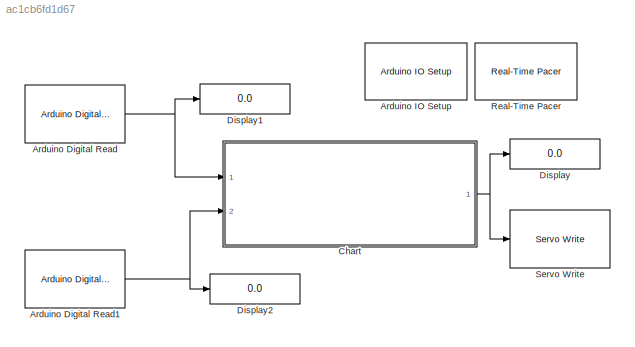
MODEL slx_ac1cb6fd1d67
KIND model
BLOCK [Reference] Arduino Digital Read  REF=arduino_io_lib/Arduino Digital Read
  Ports = [0, 1]
  SourceBlock = arduino_io_lib/Arduino Digital Read
  SourceType = Arduino IO digital read
  T = 0.2
  arduinoPin = 2
  arduinoVar = Temporary arduino variable: Arduino1
BLOCK [Reference] Arduino Digital Read1  REF=arduino_io_lib/Arduino Digital Read
  Ports = [0, 1]
  SourceBlock = arduino_io_lib/Arduino Digital Read
  SourceType = Arduino IO digital read
  T = 0.2
  arduinoPin = 4
  arduinoVar = Temporary arduino variable: Arduino1
BLOCK [Reference] Arduino IO Setup  REF=arduino_io_lib/Arduino IO Setup
  Ports = []
  Priority = 3
  SourceBlock = arduino_io_lib/Arduino IO Setup
  SourceType = Arduino IO Setup
  arduinoVar = Temporary arduino variable: Arduino1
  comPort = COM49
  workspaceVarName = a
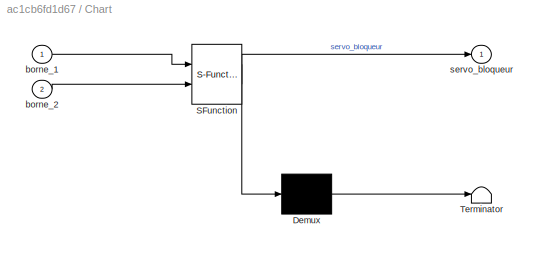
BLOCK [SubSystem] Chart
  ErrorFcn = Stateflow.Translate.translate
  FunctionWithSeparateData = off
  MaskHideContents = off
  MinAlgLoopOccurrences = off
  Opaque = off
  PermitHierarchicalResolution = ExplicitOnly
  Ports = [2, 1]
  PropExecContextOutsideSubsystem = off
  RTWSystemCode = Auto
  RequestExecContextInheritance = off
  SFBlockType = Chart
  TreatAsAtomicUnit = on
BLOCK [Demux] Chart/ Demux 
  Outputs = 1
  Ports = [1, 1]
BLOCK [S-Function] Chart/ SFunction 
  EnableBusSupport = on
  FunctionName = sf_sfun
  PortCounts = [2 2]
  Ports = [2, 2]
  Tag = Stateflow S-Function Execution_servo_tangage_1_v2_corrige 1
BLOCK [Terminator] Chart/ Terminator 
BLOCK [Inport] Chart/borne_1
  IconDisplay = Port number
BLOCK [Inport] Chart/borne_2
  IconDisplay = Port number
  Port = 2
BLOCK [Outport] Chart/servo_bloqueur
  IconDisplay = Port number
BLOCK [Display] Display
  Decimation = 1
  Lockdown = off
  Ports = [1]
BLOCK [Display] Display1
  Decimation = 1
  Lockdown = off
  Ports = [1]
BLOCK [Display] Display2
  Decimation = 1
  Lockdown = off
  Ports = [1]
BLOCK [Reference] Real-Time Pacer  REF=arduino_io_lib/Real-Time Pacer
  Ports = []
  SourceBlock = arduino_io_lib/Real-Time Pacer
  SourceType = RealTime_Pacer
  simTimePerRealTime = 1
BLOCK [Reference] Servo Write  REF=arduino_io_lib/Servo Write
  Ports = [1]
  SourceBlock = arduino_io_lib/Servo Write
  SourceType = Arduino IO servo Write
  T = 0.2
  arduinoVar = Temporary arduino variable: Arduino1
  pinNum = 3
NET Arduino Digital Read1:1 -> Chart:2, Display2:1
NET Arduino Digital Read:1 -> Chart:1, Display1:1
NET Chart:1 -> Display:1, Servo Write:1
note: NET lines group one-source signal fan-out (src -> all destinations, sorted); 1:1 wires keep LINE
